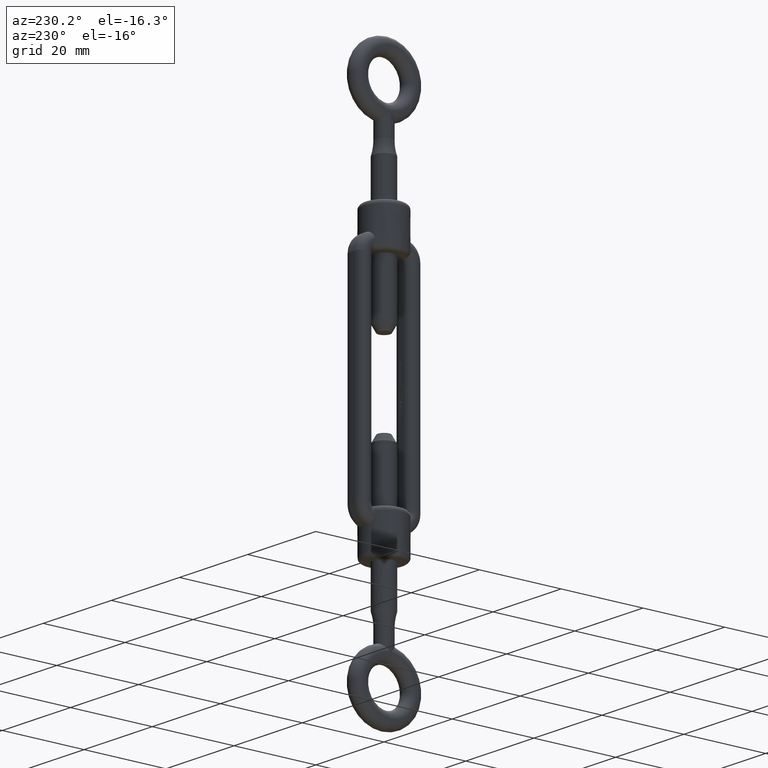
[diagram: clean part render]
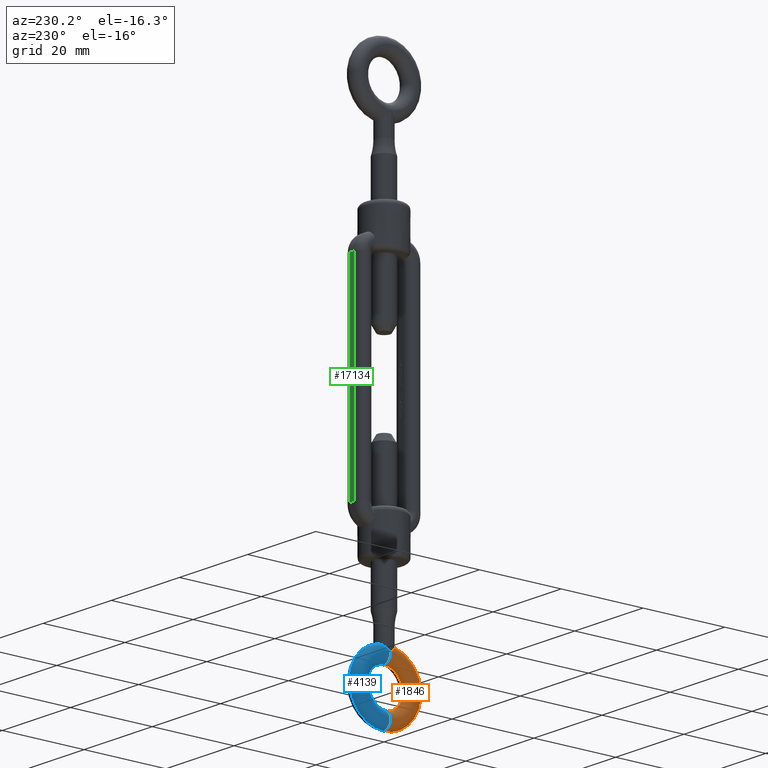
[diagram: same view with three faces highlighted in distinct colors, each labeled with its STEP entity id]
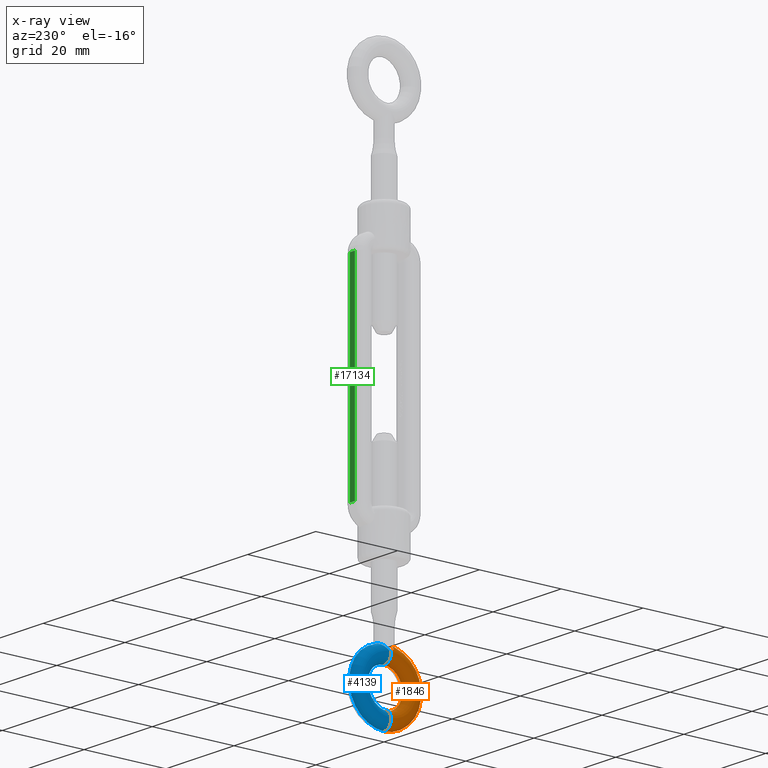
[diagram: x-ray of the same camera — body ghosted, the three highlighted faces saturated]
A machine part, auxiliary view with three faces highlighted in distinct colors.
The next image is the same camera in x-ray (body ghosted, the three faces saturated) — at least one of them is partly hidden behind the body in this view.
Their STEP definitions:

[orange] entity #1846 — the highlighted toroidal blend (fillet) surface has major radius 6.5 mm and minor (blend) radius 2 mm.
#124 = CARTESIAN_POINT ( 'NONE',  ( 0.0000000000000000000, -8.500000000000000000, -9.250147542672335600E-016 ) ) ;
#174 = CARTESIAN_POINT ( 'NONE',  ( 1.488215816540941800, -16.34867037688388100, -1.343116770142228400 ) ) ;
#238 = CARTESIAN_POINT ( 'NONE',  ( 1.734532125466614800, -16.54993957519637600, -1.006256112382662500 ) ) ;
#944 = CIRCLE ( 'NONE', #16778, 2.000000000000000000 ) ;
#1193 = EDGE_LOOP ( 'NONE', ( #12345, #11262, #13036, #9312, #15727 ) ) ;
#1477 = CARTESIAN_POINT ( 'NONE',  ( 7.642090019328551900E-027, -15.00000000000000200, -2.000000000000000900 ) ) ;
#1626 = CARTESIAN_POINT ( 'NONE',  ( 0.0000000000000000000, -8.500000000000000000, -6.800853944377627700E-016 ) ) ;
#1775 = CARTESIAN_POINT ( 'NONE',  ( 5.510910596163090500E-016, -13.00000000000000200, -6.800853944377627700E-016 ) ) ;
#1846 = ADVANCED_FACE ( 'NONE', ( #18217 ), #3009, .T. ) ;
#2594 = EDGE_CURVE ( 'NONE', #16523, #2717, #944, .T. ) ;
#2717 = VERTEX_POINT ( 'NONE', #15631 ) ;
#2870 = CARTESIAN_POINT ( 'NONE',  ( 0.2194325119988638800, -15.21666998429080300, -1.991065280339214800 ) ) ;
#3009 = TOROIDAL_SURFACE ( 'NONE', #15956, 6.500000000000000900, 2.000000000000000000 ) ;
#3130 = CARTESIAN_POINT ( 'NONE',  ( 1.982321625739466700, -16.74748074521187000, -0.3062512173180159700 ) ) ;
#3383 = CARTESIAN_POINT ( 'NONE',  ( 2.000000000000000000, -16.76135582092915400, -6.438341219959649200E-015 ) ) ;
#3578 = EDGE_CURVE ( 'NONE', #2717, #6163, #6997, .T. ) ;
#3613 = AXIS2_PLACEMENT_3D ( 'NONE', #7601, #17627, #7905 ) ;
#3783 = CARTESIAN_POINT ( 'NONE',  ( 0.0000000000000000000, -2.000000000000000000, 0.0000000000000000000 ) ) ;
#4493 = CARTESIAN_POINT ( 'NONE',  ( 0.4399063263938370300, -15.42674636932865100, -1.954219537793306900 ) ) ;
#4495 = AXIS2_PLACEMENT_3D ( 'NONE', #124, #17111, #10172 ) ;
#5288 = DIRECTION ( 'NONE',  ( -0.0000000000000000000, 1.423099621949589700E-016, -1.000000000000000000 ) ) ;
#6163 = VERTEX_POINT ( 'NONE', #1775 ) ;
#6330 = CARTESIAN_POINT ( 'NONE',  ( 7.642090019328551900E-027, -15.00000000000000200, -2.000000000000000900 ) ) ;
#6997 = CIRCLE ( 'NONE', #7191, 4.500000000000000900 ) ;
#7191 = AXIS2_PLACEMENT_3D ( 'NONE', #1626, #15993, #7400 ) ;
#7400 = DIRECTION ( 'NONE',  ( 0.0000000000000000000, 1.000000000000000000, 1.423099621949589700E-016 ) ) ;
#7601 = CARTESIAN_POINT ( 'NONE',  ( 7.960204194457796500E-016, -15.00000000000000200, -1.850029508534467100E-015 ) ) ;
#7905 = DIRECTION ( 'NONE',  ( -1.224646799147353000E-016, 1.000000000000000000, 0.0000000000000000000 ) ) ;
#8169 = DIRECTION ( 'NONE',  ( 0.0000000000000000000, 1.000000000000000000, 1.423099621949589700E-016 ) ) ;
#8278 = B_SPLINE_CURVE_WITH_KNOTS ( 'NONE', 3,
 ( #1477, #11445, #2870, #4493, #12887, #15916, #11505, #14402, #174, #14782, #238, #11759, #10471, #3130, #8963, #3383 ),
 .UNSPECIFIED., .F., .F.,
 ( 4, 2, 2, 2, 2, 2, 2, 4 ),
 ( -8.944277769999931100E-006, 0.0004511171649843308400, 0.0009111786077386614900, 0.001831301493247322800, 0.002291362936001656300, 0.002751424378755989400, 0.003211485821510322900, 0.003671547264264656000 ),
 .UNSPECIFIED. ) ;
#8436 = CIRCLE ( 'NONE', #3613, 2.000000000000000000 ) ;
#8963 = CARTESIAN_POINT ( 'NONE',  ( 2.000000000000031100, -16.76135582092934600, -0.1545514687070913600 ) ) ;
#9312 = ORIENTED_EDGE ( 'NONE', *, *, #9878, .T. ) ;
#9878 = EDGE_CURVE ( 'NONE', #15529, #6163, #8436, .T. ) ;
#10172 = DIRECTION ( 'NONE',  ( 0.0000000000000000000, 1.000000000000000000, 1.423099621949590000E-016 ) ) ;
#10471 = CARTESIAN_POINT ( 'NONE',  ( 1.912710308642841200, -16.69243501777002300, -0.6040928001512180200 ) ) ;
#10711 = EDGE_CURVE ( 'NONE', #15529, #18328, #8278, .T. ) ;
#11262 = ORIENTED_EDGE ( 'NONE', *, *, #15392, .T. ) ;
#11445 = CARTESIAN_POINT ( 'NONE',  ( 0.1084639514558707300, -15.10841122176938500, -2.000000000000000400 ) ) ;
#11505 = CARTESIAN_POINT ( 'NONE',  ( 1.097261737811012100, -16.01947507868676000, -1.692257849355755400 ) ) ;
#11759 = CARTESIAN_POINT ( 'NONE',  ( 1.861864233863199900, -16.65210675675118800, -0.7447245347403298500 ) ) ;
#12299 = CARTESIAN_POINT ( 'NONE',  ( 0.0000000000000000000, -8.500000000000000000, -9.250147542672335600E-016 ) ) ;
#12345 = ORIENTED_EDGE ( 'NONE', *, *, #2594, .F. ) ;
#12887 = CARTESIAN_POINT ( 'NONE',  ( 0.5504013813404763400, -15.52960596842679500, -1.926332974383444500 ) ) ;
#13036 = ORIENTED_EDGE ( 'NONE', *, *, #10711, .F. ) ;
#13512 = CARTESIAN_POINT ( 'NONE',  ( 2.000000000000000000, -16.76135582092915400, -6.438341219959649200E-015 ) ) ;
#14402 = CARTESIAN_POINT ( 'NONE',  ( 1.394645020840744400, -16.27093372689483500, -1.439407952366772000 ) ) ;
#14782 = CARTESIAN_POINT ( 'NONE',  ( 1.657380450484703600, -16.48753822690341800, -1.127758403733279300 ) ) ;
#15202 = DIRECTION ( 'NONE',  ( -1.000000000000000000, 0.0000000000000000000, 0.0000000000000000000 ) ) ;
#15392 = EDGE_CURVE ( 'NONE', #16523, #18328, #16887, .T. ) ;
#15529 = VERTEX_POINT ( 'NONE', #6330 ) ;
#15631 = CARTESIAN_POINT ( 'NONE',  ( 0.0000000000000000000, -4.000000000000000000, -6.800853944377627700E-016 ) ) ;
#15727 = ORIENTED_EDGE ( 'NONE', *, *, #3578, .F. ) ;
#15916 = CARTESIAN_POINT ( 'NONE',  ( 0.8818229721321451100, -15.83173015688551300, -1.810301047045323400 ) ) ;
#15956 = AXIS2_PLACEMENT_3D ( 'NONE', #12299, #5288, #8169 ) ;
#15993 = DIRECTION ( 'NONE',  ( -0.0000000000000000000, 1.423099621949589700E-016, -1.000000000000000000 ) ) ;
#16523 = VERTEX_POINT ( 'NONE', #18246 ) ;
#16778 = AXIS2_PLACEMENT_3D ( 'NONE', #3783, #15202, #18061 ) ;
#16887 = CIRCLE ( 'NONE', #4495, 8.500000000000000000 ) ;
#17111 = DIRECTION ( 'NONE',  ( -0.0000000000000000000, 1.423099621949589700E-016, -1.000000000000000000 ) ) ;
#17627 = DIRECTION ( 'NONE',  ( 1.000000000000000000, 1.224646799147353200E-016, 1.742794396888373400E-032 ) ) ;
#18061 = DIRECTION ( 'NONE',  ( 0.0000000000000000000, 0.0000000000000000000, 1.000000000000000000 ) ) ;
#18217 = FACE_OUTER_BOUND ( 'NONE', #1193, .T. ) ;
#18246 = CARTESIAN_POINT ( 'NONE',  ( 0.0000000000000000000, 0.0000000000000000000, 2.846199243899179400E-016 ) ) ;
#18328 = VERTEX_POINT ( 'NONE', #13512 ) ;

[blue] entity #4139 — the highlighted toroidal blend (fillet) surface has major radius 6.5 mm and minor (blend) radius 2 mm.
#944 = CIRCLE ( 'NONE', #16778, 2.000000000000000000 ) ;
#1775 = CARTESIAN_POINT ( 'NONE',  ( 5.510910596163090500E-016, -13.00000000000000200, -6.800853944377627700E-016 ) ) ;
#2533 = CARTESIAN_POINT ( 'NONE',  ( -2.000000000000000000, -16.76135582092915000, -0.1537916708847720000 ) ) ;
#2594 = EDGE_CURVE ( 'NONE', #16523, #2717, #944, .T. ) ;
#2717 = VERTEX_POINT ( 'NONE', #15631 ) ;
#2727 = CARTESIAN_POINT ( 'NONE',  ( -1.391860851855537800, -16.26859655971798800, -1.441982018211843700 ) ) ;
#3455 = DIRECTION ( 'NONE',  ( -0.0000000000000000000, 1.423099621949589700E-016, -1.000000000000000000 ) ) ;
#3566 = CARTESIAN_POINT ( 'NONE',  ( 0.0000000000000000000, -8.500000000000000000, -6.800853944377627700E-016 ) ) ;
#3600 = DIRECTION ( 'NONE',  ( -0.0000000000000000000, 1.423099621949589700E-016, -1.000000000000000000 ) ) ;
#3613 = AXIS2_PLACEMENT_3D ( 'NONE', #7601, #17627, #7905 ) ;
#3783 = CARTESIAN_POINT ( 'NONE',  ( 0.0000000000000000000, -2.000000000000000000, 0.0000000000000000000 ) ) ;
#3852 = CARTESIAN_POINT ( 'NONE',  ( -2.000000000000000000, -16.76135582092915400, -2.163811591569531500E-015 ) ) ;
#4032 = CARTESIAN_POINT ( 'NONE',  ( 7.642090019328551900E-027, -15.00000000000000200, -2.000000000000000900 ) ) ;
#4088 = CARTESIAN_POINT ( 'NONE',  ( -0.2191815568855068100, -15.21907500190532900, -2.000000000000000900 ) ) ;
#4139 = ADVANCED_FACE ( 'NONE', ( #8326 ), #13052, .T. ) ;
#4742 = EDGE_CURVE ( 'NONE', #10832, #16523, #9240, .T. ) ;
#4858 = CARTESIAN_POINT ( 'NONE',  ( 0.0000000000000000000, -8.500000000000000000, -9.250147542672335600E-016 ) ) ;
#5548 = CARTESIAN_POINT ( 'NONE',  ( -1.486801826036851800, -16.34750262137427900, -1.344742547303589200 ) ) ;
#5765 = AXIS2_PLACEMENT_3D ( 'NONE', #6499, #3455, #9173 ) ;
#6163 = VERTEX_POINT ( 'NONE', #1775 ) ;
#6330 = CARTESIAN_POINT ( 'NONE',  ( 7.642090019328551900E-027, -15.00000000000000200, -2.000000000000000900 ) ) ;
#6499 = CARTESIAN_POINT ( 'NONE',  ( 0.0000000000000000000, -8.500000000000000000, -9.250147542672335600E-016 ) ) ;
#7601 = CARTESIAN_POINT ( 'NONE',  ( 7.960204194457796500E-016, -15.00000000000000200, -1.850029508534467100E-015 ) ) ;
#7740 = ORIENTED_EDGE ( 'NONE', *, *, #9878, .F. ) ;
#7905 = DIRECTION ( 'NONE',  ( -1.224646799147353000E-016, 1.000000000000000000, 0.0000000000000000000 ) ) ;
#8241 = CARTESIAN_POINT ( 'NONE',  ( -1.656869536501139700, -16.48712574262556200, -1.128581201088144600 ) ) ;
#8326 = FACE_OUTER_BOUND ( 'NONE', #10657, .T. ) ;
#8399 = CIRCLE ( 'NONE', #14688, 4.500000000000000900 ) ;
#8429 = CARTESIAN_POINT ( 'NONE',  ( -1.092975845578125800, -16.01446959587454800, -1.679336964058306500 ) ) ;
#8436 = CIRCLE ( 'NONE', #3613, 2.000000000000000000 ) ;
#9173 = DIRECTION ( 'NONE',  ( 0.0000000000000000000, 1.000000000000000000, 1.423099621949590000E-016 ) ) ;
#9240 = CIRCLE ( 'NONE', #5765, 8.500000000000000000 ) ;
#9878 = EDGE_CURVE ( 'NONE', #15529, #6163, #8436, .T. ) ;
#9967 = ORIENTED_EDGE ( 'NONE', *, *, #11352, .F. ) ;
#10657 = EDGE_LOOP ( 'NONE', ( #14295, #12786, #15929, #9967, #7740 ) ) ;
#10832 = VERTEX_POINT ( 'NONE', #13606 ) ;
#11121 = CARTESIAN_POINT ( 'NONE',  ( -1.195407407842219000, -16.10244682556142200, -1.608598738359032300 ) ) ;
#11352 = EDGE_CURVE ( 'NONE', #6163, #2717, #8399, .T. ) ;
#12230 = AXIS2_PLACEMENT_3D ( 'NONE', #4858, #3600, #16277 ) ;
#12554 = CARTESIAN_POINT ( 'NONE',  ( -0.8816003328718501300, -15.82935001498368700, -1.799319229861680700 ) ) ;
#12741 = CARTESIAN_POINT ( 'NONE',  ( -1.733247154235073100, -16.54890550724383400, -1.008667199991096100 ) ) ;
#12786 = ORIENTED_EDGE ( 'NONE', *, *, #4742, .T. ) ;
#13052 = TOROIDAL_SURFACE ( 'NONE', #12230, 6.500000000000000900, 2.000000000000000000 ) ;
#13606 = CARTESIAN_POINT ( 'NONE',  ( -2.000000000000000000, -16.76135582092915400, -2.163811591569531500E-015 ) ) ;
#13981 = EDGE_CURVE ( 'NONE', #10832, #15529, #14512, .T. ) ;
#13997 = CARTESIAN_POINT ( 'NONE',  ( -0.7718455156520260800, -15.73146901101899600, -1.848775940117258100 ) ) ;
#14060 = CARTESIAN_POINT ( 'NONE',  ( -0.4402382381595078600, -15.42919234193155600, -1.964958574834618800 ) ) ;
#14181 = CARTESIAN_POINT ( 'NONE',  ( -1.912224431984532300, -16.69204922039862300, -0.6052945641453952900 ) ) ;
#14295 = ORIENTED_EDGE ( 'NONE', *, *, #13981, .F. ) ;
#14512 = B_SPLINE_CURVE_WITH_KNOTS ( 'NONE', 3,
 ( #3852, #2533, #16956, #14181, #16888, #12741, #8241, #5548, #2727, #11121, #8429, #12554, #13997, #14060, #4088, #4032 ),
 .UNSPECIFIED., .F., .F.,
 ( 4, 2, 2, 2, 2, 2, 2, 4 ),
 ( 0.003695968054778025400, 0.004160809054638444500, 0.004625650054498864000, 0.005090491054359283500, 0.005555332054219703900, 0.006020173054080123400, 0.006485014053940542900, 0.007414696053661381900 ),
 .UNSPECIFIED. ) ;
#14688 = AXIS2_PLACEMENT_3D ( 'NONE', #3566, #16416, #16359 ) ;
#15202 = DIRECTION ( 'NONE',  ( -1.000000000000000000, 0.0000000000000000000, 0.0000000000000000000 ) ) ;
#15529 = VERTEX_POINT ( 'NONE', #6330 ) ;
#15631 = CARTESIAN_POINT ( 'NONE',  ( 0.0000000000000000000, -4.000000000000000000, -6.800853944377627700E-016 ) ) ;
#15929 = ORIENTED_EDGE ( 'NONE', *, *, #2594, .T. ) ;
#16277 = DIRECTION ( 'NONE',  ( 0.0000000000000000000, 1.000000000000000000, 1.423099621949589700E-016 ) ) ;
#16359 = DIRECTION ( 'NONE',  ( 0.0000000000000000000, 1.000000000000000000, 1.423099621949589700E-016 ) ) ;
#16416 = DIRECTION ( 'NONE',  ( -0.0000000000000000000, 1.423099621949589700E-016, -1.000000000000000000 ) ) ;
#16523 = VERTEX_POINT ( 'NONE', #18246 ) ;
#16778 = AXIS2_PLACEMENT_3D ( 'NONE', #3783, #15202, #18061 ) ;
#16888 = CARTESIAN_POINT ( 'NONE',  ( -1.861962717071631700, -16.65218879696829300, -0.7447483187205471400 ) ) ;
#16956 = CARTESIAN_POINT ( 'NONE',  ( -1.981615739800346400, -16.74692411939381400, -0.3101335961131243500 ) ) ;
#17627 = DIRECTION ( 'NONE',  ( 1.000000000000000000, 1.224646799147353200E-016, 1.742794396888373400E-032 ) ) ;
#18061 = DIRECTION ( 'NONE',  ( 0.0000000000000000000, 0.0000000000000000000, 1.000000000000000000 ) ) ;
#18246 = CARTESIAN_POINT ( 'NONE',  ( 0.0000000000000000000, 0.0000000000000000000, 2.846199243899179400E-016 ) ) ;

[green] entity #17134 — the highlighted planar face has unit normal (0, 1, -0).
#100 = DIRECTION ( 'NONE',  ( 1.000000000000000000, 0.0000000000000000000, 0.0000000000000000000 ) ) ;
#2385 = EDGE_CURVE ( 'NONE', #4136, #5464, #6358, .T. ) ;
#3378 = CARTESIAN_POINT ( 'NONE',  ( 0.7499999999999984500, 7.750000000000010700, 24.50000000000000700 ) ) ;
#4136 = VERTEX_POINT ( 'NONE', #14778 ) ;
#4199 = EDGE_CURVE ( 'NONE', #16814, #5464, #15510, .T. ) ;
#5043 = DIRECTION ( 'NONE',  ( 1.000000000000000000, 0.0000000000000000000, 0.0000000000000000000 ) ) ;
#5464 = VERTEX_POINT ( 'NONE', #8562 ) ;
#5494 = VECTOR ( 'NONE', #5043, 1000.000000000000000 ) ;
#6358 = LINE ( 'NONE', #7083, #17357 ) ;
#6413 = CARTESIAN_POINT ( 'NONE',  ( 0.7499999999999984500, 7.750000000000010700, 24.50000000000000700 ) ) ;
#6543 = CARTESIAN_POINT ( 'NONE',  ( -0.7499999999999984500, 7.750000000000010700, 24.50000000000000700 ) ) ;
#7083 = CARTESIAN_POINT ( 'NONE',  ( -0.7499999999999984500, 7.750000000000008000, -24.49999999999999300 ) ) ;
#7126 = ORIENTED_EDGE ( 'NONE', *, *, #12269, .F. ) ;
#8562 = CARTESIAN_POINT ( 'NONE',  ( 0.7499999999999984500, 7.750000000000008000, -24.49999999999999300 ) ) ;
#9187 = DIRECTION ( 'NONE',  ( 0.0000000000000000000, 5.310377987684103200E-017, 1.000000000000000000 ) ) ;
#9727 = LINE ( 'NONE', #13514, #14668 ) ;
#10791 = CARTESIAN_POINT ( 'NONE',  ( -0.7499999999999984500, 7.750000000000010700, 24.50000000000000700 ) ) ;
#10805 = VECTOR ( 'NONE', #14841, 1000.000000000000000 ) ;
#11316 = AXIS2_PLACEMENT_3D ( 'NONE', #10791, #17752, #9187 ) ;
#11731 = ORIENTED_EDGE ( 'NONE', *, *, #4199, .T. ) ;
#11896 = DIRECTION ( 'NONE',  ( 0.0000000000000000000, -5.310377987684103200E-017, -1.000000000000000000 ) ) ;
#12269 = EDGE_CURVE ( 'NONE', #17764, #4136, #9727, .T. ) ;
#12370 = CARTESIAN_POINT ( 'NONE',  ( -0.7499999999999984500, 7.750000000000010700, 24.50000000000000700 ) ) ;
#13184 = FACE_OUTER_BOUND ( 'NONE', #15816, .T. ) ;
#13215 = ORIENTED_EDGE ( 'NONE', *, *, #13945, .T. ) ;
#13514 = CARTESIAN_POINT ( 'NONE',  ( -0.7499999999999984500, 7.750000000000010700, 24.50000000000000700 ) ) ;
#13945 = EDGE_CURVE ( 'NONE', #17764, #16814, #17391, .T. ) ;
#13996 = ORIENTED_EDGE ( 'NONE', *, *, #2385, .F. ) ;
#14668 = VECTOR ( 'NONE', #11896, 1000.000000000000000 ) ;
#14778 = CARTESIAN_POINT ( 'NONE',  ( -0.7499999999999984500, 7.750000000000008000, -24.49999999999999300 ) ) ;
#14841 = DIRECTION ( 'NONE',  ( 0.0000000000000000000, -5.310377987684103200E-017, -1.000000000000000000 ) ) ;
#15510 = LINE ( 'NONE', #3378, #10805 ) ;
#15816 = EDGE_LOOP ( 'NONE', ( #13215, #11731, #13996, #7126 ) ) ;
#16312 = PLANE ( 'NONE',  #11316 ) ;
#16814 = VERTEX_POINT ( 'NONE', #6413 ) ;
#17134 = ADVANCED_FACE ( 'NONE', ( #13184 ), #16312, .T. ) ;
#17357 = VECTOR ( 'NONE', #100, 1000.000000000000000 ) ;
#17391 = LINE ( 'NONE', #12370, #5494 ) ;
#17752 = DIRECTION ( 'NONE',  ( 0.0000000000000000000, 1.000000000000000000, -5.310377987684103200E-017 ) ) ;
#17764 = VERTEX_POINT ( 'NONE', #6543 ) ;